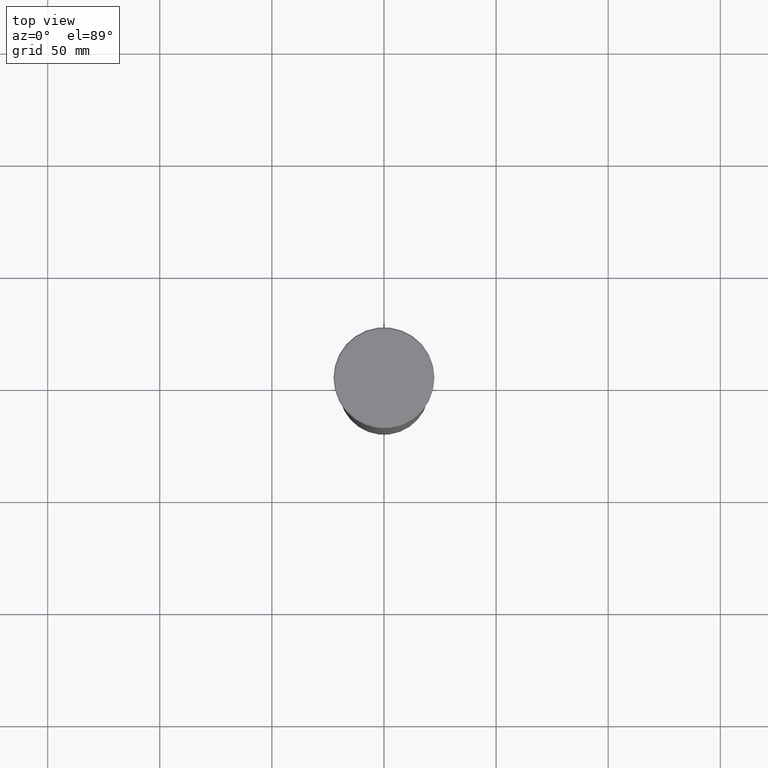
[diagram: clean part render]
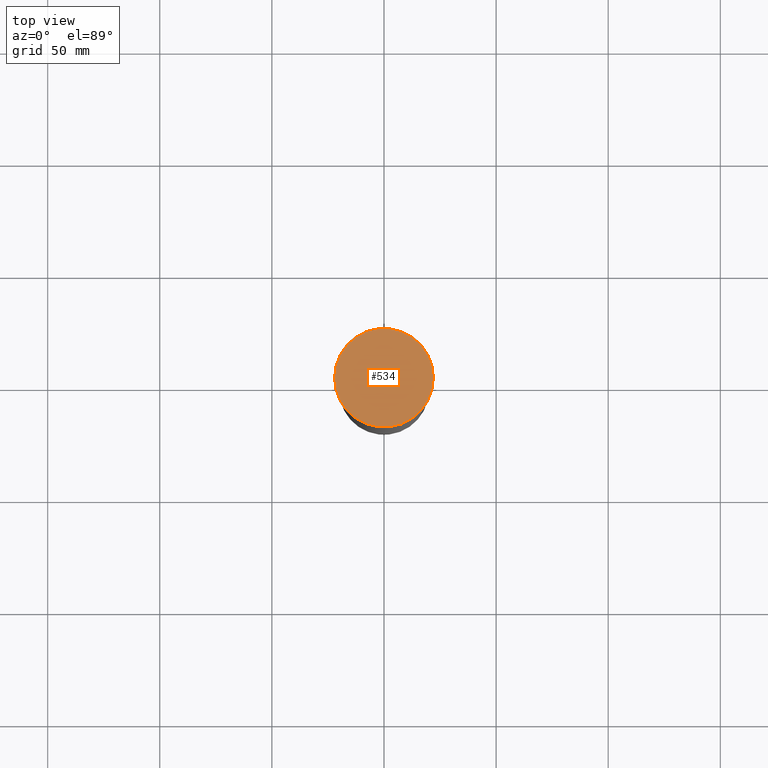
[diagram: same view with one face highlighted and labeled with its STEP entity id]
A machine part, top view. The second image highlights one B-rep face of the part: STEP entity #534.
In plain terms, the highlighted planar face has unit normal (0, -0, 1).
Its self-contained STEP definition (entity closure, byte-faithful):
#1 = CARTESIAN_POINT ( 'NONE',  ( 0.000000000000000000, 0.000000000000000000, 0.000000000000000000 ) ) ;
#14 = ORIENTED_EDGE ( 'NONE', *, *, #452, .T. ) ;
#63 = CARTESIAN_POINT ( 'NONE',  ( 22.00000000000000000, 2.724839128102860991E-15, 0.000000000000000000 ) ) ;
#89 = DIRECTION ( 'NONE',  ( 0.000000000000000000, -0.000000000000000000, 1.000000000000000000 ) ) ;
#140 = FACE_OUTER_BOUND ( 'NONE', #303, .T. ) ;
#186 = AXIS2_PLACEMENT_3D ( 'NONE', #309, #221, #546 ) ;
#221 = DIRECTION ( 'NONE',  ( -0.000000000000000000, -0.000000000000000000, 1.000000000000000000 ) ) ;
#230 = EDGE_CURVE ( 'NONE', #532, #277, #576, .T. ) ;
#277 = VERTEX_POINT ( 'NONE', #63 ) ;
#290 = CARTESIAN_POINT ( 'NONE',  ( 0.000000000000000000, 0.000000000000000000, 0.000000000000000000 ) ) ;
#303 = EDGE_LOOP ( 'NONE', ( #496, #14 ) ) ;
#309 = CARTESIAN_POINT ( 'NONE',  ( 0.000000000000000000, 0.000000000000000000, 0.000000000000000000 ) ) ;
#368 = DIRECTION ( 'NONE',  ( 1.000000000000000000, 0.000000000000000000, 0.000000000000000000 ) ) ;
#372 = CARTESIAN_POINT ( 'NONE',  ( -22.00000000000000000, 0.000000000000000000, 0.000000000000000000 ) ) ;
#373 = DIRECTION ( 'NONE',  ( 1.000000000000000000, 0.000000000000000000, 0.000000000000000000 ) ) ;
#392 = CIRCLE ( 'NONE', #530, 22.00000000000000000 ) ;
#452 = EDGE_CURVE ( 'NONE', #277, #532, #392, .T. ) ;
#496 = ORIENTED_EDGE ( 'NONE', *, *, #230, .T. ) ;
#501 = AXIS2_PLACEMENT_3D ( 'NONE', #1, #89, #373 ) ;
#507 = PLANE ( 'NONE',  #501 ) ;
#530 = AXIS2_PLACEMENT_3D ( 'NONE', #290, #557, #368 ) ;
#532 = VERTEX_POINT ( 'NONE', #372 ) ;
#534 = ADVANCED_FACE ( 'NONE', ( #140 ), #507, .T. ) ;
#546 = DIRECTION ( 'NONE',  ( 1.000000000000000000, 0.000000000000000000, 0.000000000000000000 ) ) ;
#557 = DIRECTION ( 'NONE',  ( -0.000000000000000000, -0.000000000000000000, 1.000000000000000000 ) ) ;
#576 = CIRCLE ( 'NONE', #186, 22.00000000000000000 ) ;